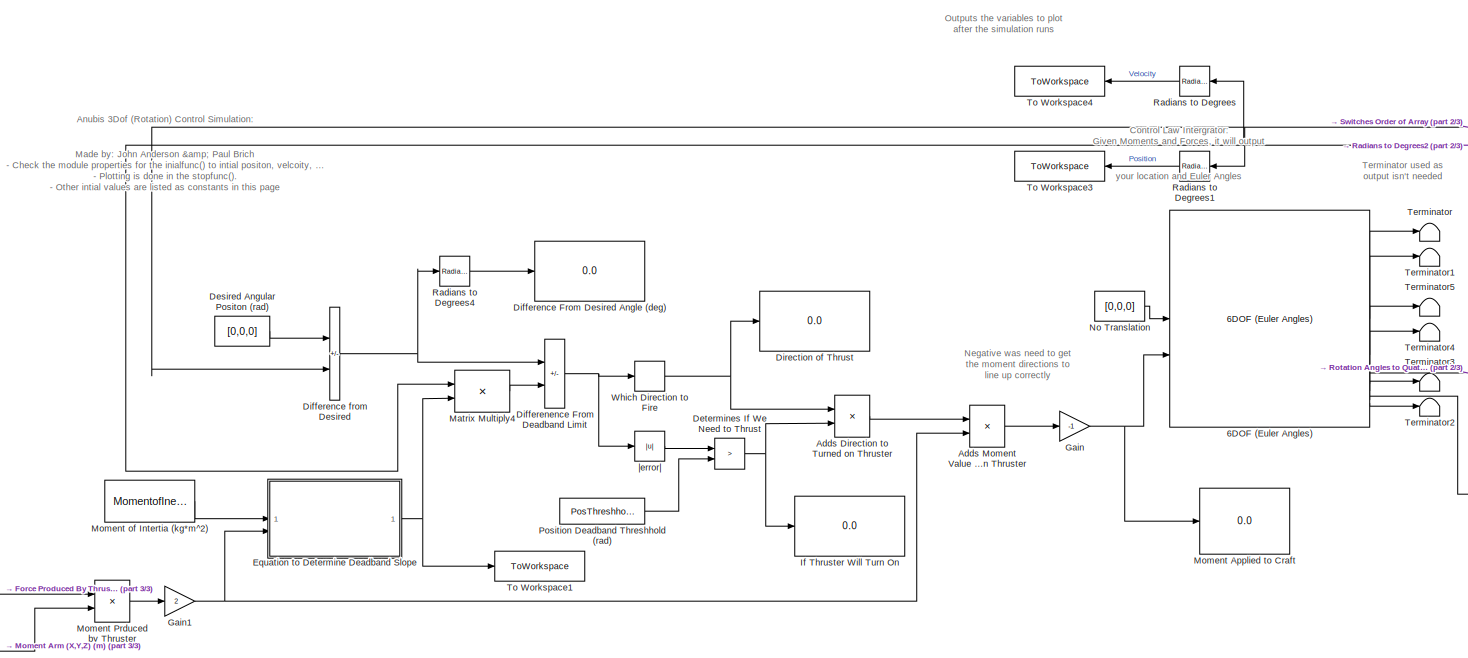
[diagram: root canvas - part 1/3, center side, full height]
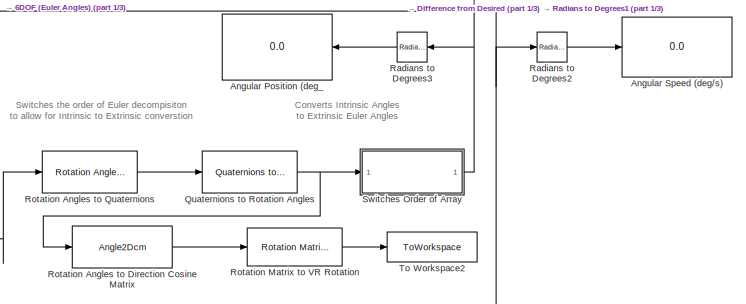
[diagram: root canvas - part 2/3, middle right region]
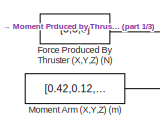
[diagram: root canvas - part 3/3, bottom left region]
MODEL slx_66c13f87881c
KIND model
CONFIG AbsTol = auto
CONFIG EnableMultiTasking = off
CONFIG FixedStep = .01
CONFIG InitFcn = InitialPosition = deg2rad([40, 3, -15]); %rad\nInitialVelocity = deg2rad([-4, 1, -9]); %rad/s\nMomentofInertia =  [ 1.582, -0.014,     0;\n                    -0.014,  0.098, 0.009;\n                         0,  0.009, 1.581]; %kg*m^2\nMass = 16.385; %kg\nPosThreshhold = deg2rad(3);
CONFIG MaxStep = auto
CONFIG MinStep = auto
CONFIG RelTol = 1e-3
CONFIG SampleTimeConstraint = Unconstrained
CONFIG SolverName = FixedStepAuto
CONFIG StartTime = 0.0
CONFIG StopFcn = close all\nfigure(1)\nsubplot(2,2,1)\n\nanglelim = 45;\nvlim = 10;\nYscale = 1;\nangles = -anglelim:anglelim;\n\ngrid on\nhold on\nplot(angles, 1/out.slope.Data(1)*angles + rad2deg(PosThreshhold)/out.slope.Data(1),'k')\nplot(angles, 1/out.slope.Data(1)*angles - rad2deg(PosThreshhold)/out.slope.Data(1),'k')\nplot(out.pos.Data(1:end,1), out.vel.Data(1:end,1),'b');\nxlim([-anglelim,anglelim])\nylim([-vlim,vlim])\nti...<+1090ch>
CONFIG StopTime = 360
BLOCK [Reference] 6DOF (Euler Angles)  REF=shared6dof/6DOF (Euler Angles)
  LibrarySourceBlock = aerolib6dof2/6DOF (Euler Angles)
  SourceBlock = shared6dof/6DOF (Euler Angles)
  SourceType = 6DOF EoM (Body Axis)
BLOCK [Product] Adds Direction to Turned on Thruster
BLOCK [Product] Adds Moment Value To Turned On Thruster
BLOCK [Display] Angular Position (deg_
  Decimation = 1
BLOCK [Display] Angular Speed (deg//s)
  Decimation = 1
BLOCK [Constant] Desired Angular Positon (rad)
  Value = [0,0,0]
BLOCK [RelationalOperator] Determines If We Need to Thrust
  InputSameDT = off
  Operator = >
  OutDataTypeStr = boolean
  RndMeth = Simplest
BLOCK [Display] Difference From Desired Angle (deg)
  Decimation = 1
BLOCK [Sum] Difference from Desired
  IconShape = rectangular
  Inputs = -+
BLOCK [Sum] Differenence From Deadband Limit
  IconShape = rectangular
  Inputs = +-
BLOCK [Display] Direction of Thrust
  Decimation = 1
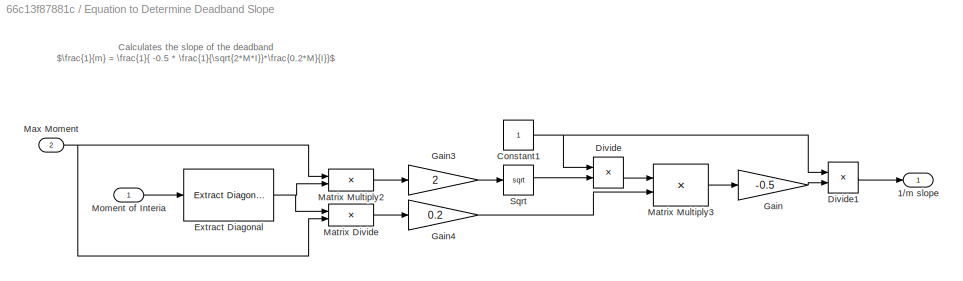
BLOCK [SubSystem] Equation to Determine Deadband Slope
BLOCK [Outport] Equation to Determine Deadband Slope/1//m slope
BLOCK [Constant] Equation to Determine Deadband Slope/Constant1
BLOCK [Product] Equation to Determine Deadband Slope/Divide
  Inputs = */
BLOCK [Product] Equation to Determine Deadband Slope/Divide1
  Inputs = */
BLOCK [Reference] Equation to Determine Deadband Slope/Extract Diagonal  REF=matrix_library/Extract Diagonal
  LibrarySourceBlock = simulink/Matrix\nOperations/Extract Diagonal
  SourceBlock = matrix_library/Extract Diagonal
  SourceType = Extract Diagonal
BLOCK [Gain] Equation to Determine Deadband Slope/Gain
  Gain = -0.5
BLOCK [Gain] Equation to Determine Deadband Slope/Gain3
  Gain = 2
BLOCK [Gain] Equation to Determine Deadband Slope/Gain4
  Gain = 0.2
BLOCK [Product] Equation to Determine Deadband Slope/Matrix Divide
  Inputs = /*
BLOCK [Product] Equation to Determine Deadband Slope/Matrix Multiply2
BLOCK [Product] Equation to Determine Deadband Slope/Matrix Multiply3
BLOCK [Inport] Equation to Determine Deadband Slope/Max Moment
  Port = 2
BLOCK [Inport] Equation to Determine Deadband Slope/Moment of Interia
BLOCK [Sqrt] Equation to Determine Deadband Slope/Sqrt
BLOCK [Constant] Force Produced By Thruster (X,Y,Z) (N)
  Value = [3,3,3]
BLOCK [Gain] Gain
  Gain = -1
BLOCK [Gain] Gain1
  Gain = 2
BLOCK [Display] If Thruster Will Turn On
  Decimation = 1
BLOCK [Product] Matrix Multiply4
BLOCK [Display] Moment Applied to Craft
  Decimation = 1
BLOCK [Constant] Moment Arm (X,Y,Z) (m)
  Value = [0.42,0.12,0.42]
BLOCK [Product] Moment Prduced by Thruster
BLOCK [Constant] Moment of Intertia (kg*m^2)
  Value = MomentofInertia
BLOCK [Constant] No Translation
  Value = [0,0,0]
BLOCK [Constant] Position Deadband Threshhold (rad)
  Value = PosThreshhold
BLOCK [Reference] Quaternions to Rotation Angles  REF=sharedtransform/Quaternions to Rotation Angles
  AttributesFormatString = Rotation Order: %<rotationOrder>
  LibrarySourceBlock = aerolibtransform2/Quaternions to Rotation Angles
  SourceBlock = sharedtransform/Quaternions to Rotation Angles
  SourceType = Quat2Ang
BLOCK [Reference] Radians to Degrees  REF=simulink_extras/Transformations/Radians
to Degrees
  NameLocation = top
  SourceBlock = simulink_extras/Transformations/Radians\nto Degrees
  SourceType = RadiansToDegrees
BLOCK [Reference] Radians to Degrees1  REF=simulink_extras/Transformations/Radians
to Degrees
  NameLocation = top
  SourceBlock = simulink_extras/Transformations/Radians\nto Degrees
  SourceType = RadiansToDegrees
BLOCK [Reference] Radians to Degrees2  REF=simulink_extras/Transformations/Radians
to Degrees
  SourceBlock = simulink_extras/Transformations/Radians\nto Degrees
  SourceType = RadiansToDegrees
BLOCK [Reference] Radians to Degrees3  REF=simulink_extras/Transformations/Radians
to Degrees
  NameLocation = top
  SourceBlock = simulink_extras/Transformations/Radians\nto Degrees
  SourceType = RadiansToDegrees
BLOCK [Reference] Radians to Degrees4  REF=simulink_extras/Transformations/Radians
to Degrees
  SourceBlock = simulink_extras/Transformations/Radians\nto Degrees
  SourceType = RadiansToDegrees
BLOCK [Angle2Dcm] Rotation Angles to Direction Cosine Matrix
  AttributesFormatString = Rotation Order: %<rotationOrder>
BLOCK [Reference] Rotation Angles to Quaternions  REF=sharedtransform/Rotation Angles to Quaternions
  AttributesFormatString = Rotation Order: %<rotationOrder>
  LibrarySourceBlock = aerolibtransform2/Rotation Angles to Quaternions
  SourceBlock = sharedtransform/Rotation Angles to Quaternions
  SourceType = Ang2Quat
BLOCK [Reference] Rotation Matrix to VR Rotation  REF=vrlib/Utilities/Rotation Matrix
to VR Rotation
  SourceBlock = vrlib/Utilities/Rotation Matrix\nto VR Rotation
  SourceType = Rotation Matrix to VR Rotation
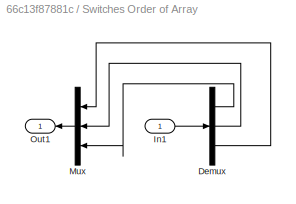
BLOCK [SubSystem] Switches Order of Array
BLOCK [Demux] Switches Order of Array/Demux
  Outputs = 3
BLOCK [Inport] Switches Order of Array/In1
BLOCK [Mux] Switches Order of Array/Mux
  DisplayOption = bar
  Inputs = 3
  NameLocation = top
BLOCK [Outport] Switches Order of Array/Out1
  NameLocation = top
BLOCK [Terminator] Terminator
BLOCK [Terminator] Terminator1
BLOCK [Terminator] Terminator2
BLOCK [Terminator] Terminator3
BLOCK [Terminator] Terminator4
BLOCK [Terminator] Terminator5
BLOCK [ToWorkspace] To Workspace1
  FixptAsFi = on
  MaxDataPoints = inf
  SampleTime = -1
  SaveFormat = Timeseries
  VariableName = slope
BLOCK [ToWorkspace] To Workspace2
  FixptAsFi = on
  MaxDataPoints = inf
  SampleTime = -1
  SaveFormat = Timeseries
  VariableName = axisAngle
BLOCK [ToWorkspace] To Workspace3
  FixptAsFi = on
  MaxDataPoints = inf
  NameLocation = top
  SampleTime = -1
  SaveFormat = Timeseries
  VariableName = pos
BLOCK [ToWorkspace] To Workspace4
  FixptAsFi = on
  MaxDataPoints = inf
  NameLocation = top
  SampleTime = -1
  SaveFormat = Timeseries
  VariableName = vel
BLOCK [Signum] Which Direction to Fire
BLOCK [Abs] |error|
  SaturateOnIntegerOverflow = off
ANNOTATION (root): Anubis 3Dof (Rotation) Control Simulation: Made by: John Anderson & Paul Brich - Check the module properties for the inialfunc() to intial positon, velcoity, moment of inertia, and mass. - Plotting is done in the stopfunc(). - Other intial values are listed as constants in this page
ANNOTATION (root): Control Law Intergrator: Given Moments and Forces, it will output your location and Euler Angles
ANNOTATION (root): Converts Intrinsic Angles to Extrinsic Euler Angles
ANNOTATION (root): Negative was need to get the moment directions to line up correctly
ANNOTATION (root): Outputs the variables to plot after the simulation runs
ANNOTATION (root): Switches the order of Euler decompisiton to allow for Intrinsic to Extrinsic converstion
ANNOTATION (root): Terminator used as output isn't needed
ANNOTATION Equation to Determine Deadband Slope: Calculates the slope of the deadband $\frac{1}{m} = \frac{1}{ -0.5 * \frac{1}{\sqrt{2*M*I}}*\frac{0.2*M}{I}}$
LINE 6DOF (Euler Angles):1 -> Terminator:1
LINE 6DOF (Euler Angles):2 -> Terminator1:1
LINE 6DOF (Euler Angles):3 -> Rotation Angles to Quaternions:1
LINE 6DOF (Euler Angles):4 -> Terminator5:1
LINE 6DOF (Euler Angles):5 -> Terminator4:1
NET 6DOF (Euler Angles):6 -> Matrix Multiply4:1, Radians to Degrees2:1, Radians to Degrees:1
LINE 6DOF (Euler Angles):7 -> Terminator3:1
LINE 6DOF (Euler Angles):8 -> Terminator2:1
LINE Adds Direction to Turned on Thruster:1 -> Adds Moment Value To Turned On Thruster:1
LINE Adds Moment Value To Turned On Thruster:1 -> Gain:1
LINE Desired Angular Positon (rad):1 -> Difference from Desired:1
NET Determines If We Need to Thrust:1 -> Adds Direction to Turned on Thruster:2, If Thruster Will Turn On:1
NET Difference from Desired:1 -> Differenence From Deadband Limit:1, Radians to Degrees4:1
NET Differenence From Deadband Limit:1 -> Which Direction to Fire:1, |error|:1
NET Equation to Determine Deadband Slope/Constant1:1 -> Equation to Determine Deadband Slope/Divide1:1, Equation to Determine Deadband Slope/Divide:1
LINE Equation to Determine Deadband Slope/Divide1:1 -> Equation to Determine Deadband Slope/1//m slope:1
LINE Equation to Determine Deadband Slope/Divide:1 -> Equation to Determine Deadband Slope/Matrix Multiply3:1
NET Equation to Determine Deadband Slope/Extract Diagonal:1 -> Equation to Determine Deadband Slope/Matrix Divide:1, Equation to Determine Deadband Slope/Matrix Multiply2:2
LINE Equation to Determine Deadband Slope/Gain3:1 -> Equation to Determine Deadband Slope/Sqrt:1
LINE Equation to Determine Deadband Slope/Gain4:1 -> Equation to Determine Deadband Slope/Matrix Multiply3:2
LINE Equation to Determine Deadband Slope/Gain:1 -> Equation to Determine Deadband Slope/Divide1:2
LINE Equation to Determine Deadband Slope/Matrix Divide:1 -> Equation to Determine Deadband Slope/Gain4:1
LINE Equation to Determine Deadband Slope/Matrix Multiply2:1 -> Equation to Determine Deadband Slope/Gain3:1
LINE Equation to Determine Deadband Slope/Matrix Multiply3:1 -> Equation to Determine Deadband Slope/Gain:1
NET Equation to Determine Deadband Slope/Max Moment:1 -> Equation to Determine Deadband Slope/Matrix Divide:2, Equation to Determine Deadband Slope/Matrix Multiply2:1
LINE Equation to Determine Deadband Slope/Moment of Interia:1 -> Equation to Determine Deadband Slope/Extract Diagonal:1
LINE Equation to Determine Deadband Slope/Sqrt:1 -> Equation to Determine Deadband Slope/Divide:2
NET Equation to Determine Deadband Slope:1 -> Matrix Multiply4:2, To Workspace1:1
LINE Force Produced By Thruster (X,Y,Z) (N):1 -> Moment Prduced by Thruster:1
NET Gain1:1 -> Adds Moment Value To Turned On Thruster:2, Equation to Determine Deadband Slope:2
NET Gain:1 -> 6DOF (Euler Angles):2, Moment Applied to Craft:1
LINE Matrix Multiply4:1 -> Differenence From Deadband Limit:2
LINE Moment Arm (X,Y,Z) (m):1 -> Moment Prduced by Thruster:2
LINE Moment Prduced by Thruster:1 -> Gain1:1
LINE Moment of Intertia (kg*m^2):1 -> Equation to Determine Deadband Slope:1
LINE No Translation:1 -> 6DOF (Euler Angles):1
LINE Position Deadband Threshhold (rad):1 -> Determines If We Need to Thrust:2
NET Quaternions to Rotation Angles:1 -> Rotation Angles to Direction Cosine Matrix:1, Switches Order of Array:1
LINE Radians to Degrees1:1 -> To Workspace3:1
LINE Radians to Degrees2:1 -> Angular Speed (deg//s):1
LINE Radians to Degrees3:1 -> Angular Position (deg_:1
LINE Radians to Degrees4:1 -> Difference From Desired Angle (deg):1
LINE Radians to Degrees:1 -> To Workspace4:1
LINE Rotation Angles to Direction Cosine Matrix:1 -> Rotation Matrix to VR Rotation:1
LINE Rotation Angles to Quaternions:1 -> Quaternions to Rotation Angles:1
LINE Rotation Matrix to VR Rotation:1 -> To Workspace2:1
LINE Switches Order of Array/Demux:1 -> Switches Order of Array/Mux:3
LINE Switches Order of Array/Demux:2 -> Switches Order of Array/Mux:2
LINE Switches Order of Array/Demux:3 -> Switches Order of Array/Mux:1
LINE Switches Order of Array/In1:1 -> Switches Order of Array/Demux:1
LINE Switches Order of Array/Mux:1 -> Switches Order of Array/Out1:1
NET Switches Order of Array:1 -> Difference from Desired:2, Radians to Degrees1:1, Radians to Degrees3:1
NET Which Direction to Fire:1 -> Adds Direction to Turned on Thruster:1, Direction of Thrust:1
LINE |error|:1 -> Determines If We Need to Thrust:1
note: NET lines group one-source signal fan-out (src -> all destinations, sorted); 1:1 wires keep LINE
